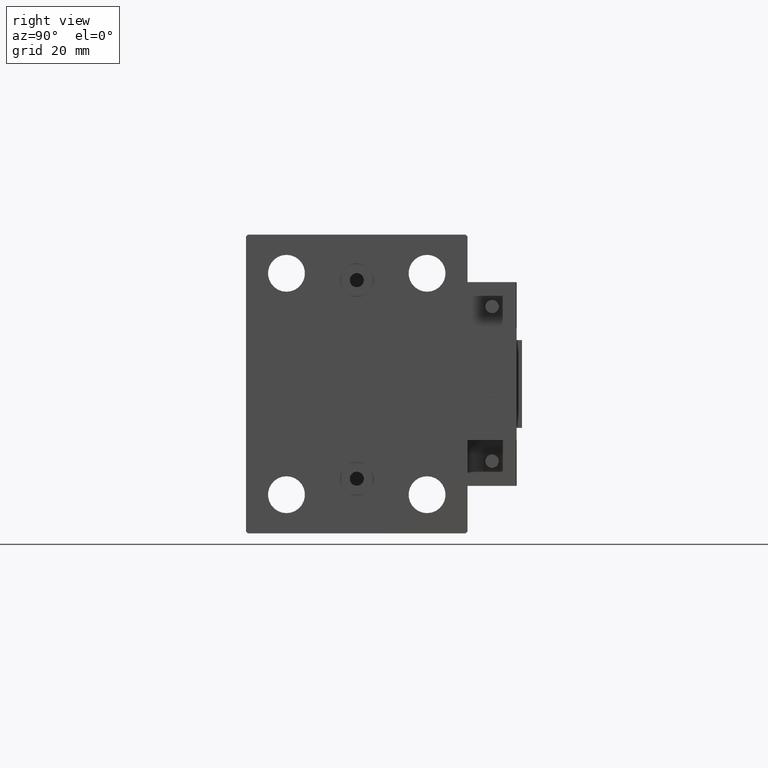
[diagram: clean part render]
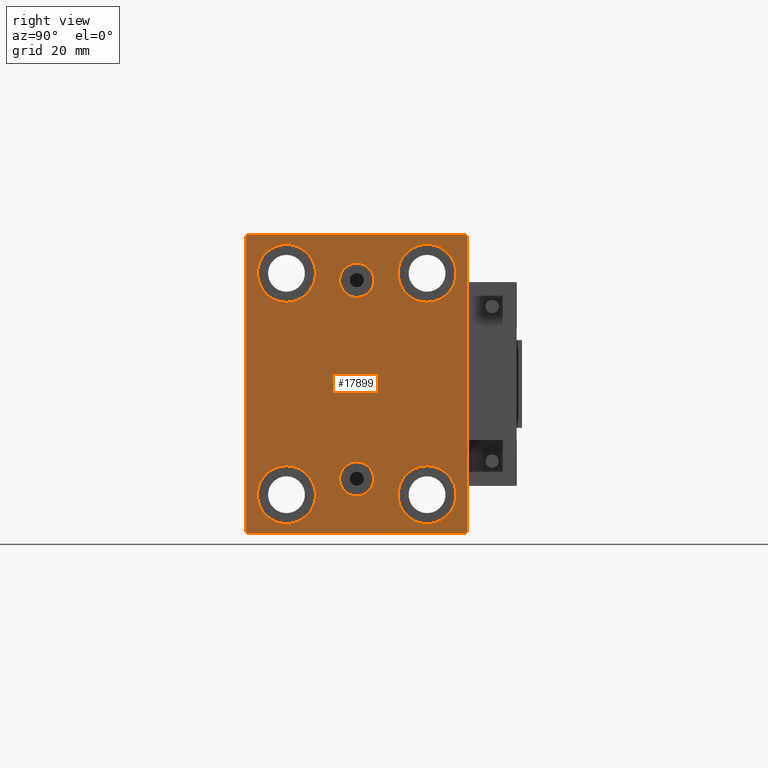
[diagram: same view with one face highlighted and labeled with its STEP entity id]
A machine part, right view. The second image highlights one B-rep face of the part: STEP entity #17899.
In plain terms, the highlighted planar face has unit normal (1, 0, 0).
Its self-contained STEP definition (entity closure, byte-faithful):
#135 = CARTESIAN_POINT ( 'NONE',  ( 73.00000000000000000, -3.571693674697836683E-15, 24.64000000000001123 ) ) ;
#678 = DIRECTION ( 'NONE',  ( 0.000000000000000000, 0.000000000000000000, 1.000000000000000000 ) ) ;
#831 = CIRCLE ( 'NONE', #43490, 8.250000000000000000 ) ;
#834 = VERTEX_POINT ( 'NONE', #27133 ) ;
#1111 = CARTESIAN_POINT ( 'NONE',  ( 73.00000000000000000, 36.75000000000001421, -36.75000000000001421 ) ) ;
#1369 = DIRECTION ( 'NONE',  ( 1.000000000000000000, 0.000000000000000000, 0.000000000000000000 ) ) ;
#1729 = CARTESIAN_POINT ( 'NONE',  ( 73.00000000000000000, -19.99999999999999645, 31.50000000000000000 ) ) ;
#2596 = EDGE_CURVE ( 'NONE', #834, #42101, #42070, .T. ) ;
#2986 = CIRCLE ( 'NONE', #9669, 4.859999999999999432 ) ;
#3086 = ORIENTED_EDGE ( 'NONE', *, *, #2596, .F. ) ;
#3845 = CARTESIAN_POINT ( 'NONE',  ( 73.00000000000000000, 31.00000000000001421, -42.50000000000000711 ) ) ;
#3886 = CARTESIAN_POINT ( 'NONE',  ( 73.00000000000000000, -31.50000000000000000, 41.99999999999999289 ) ) ;
#4144 = CARTESIAN_POINT ( 'NONE',  ( 73.00000000000000000, 36.75000000000000711, 36.75000000000000711 ) ) ;
#4768 = DIRECTION ( 'NONE',  ( 0.000000000000000000, -0.7071067811865474617, -0.7071067811865474617 ) ) ;
#4956 = CARTESIAN_POINT ( 'NONE',  ( 73.00000000000000000, -19.99999999999999645, 23.25000000000000355 ) ) ;
#5164 = EDGE_LOOP ( 'NONE', ( #6522, #43057 ) ) ;
#5286 = VERTEX_POINT ( 'NONE', #27978 ) ;
#5635 = FACE_BOUND ( 'NONE', #48841, .T. ) ;
#5663 = EDGE_LOOP ( 'NONE', ( #25432, #22390, #37390, #45957, #40288, #45699, #27450, #32620 ) ) ;
#5833 = CARTESIAN_POINT ( 'NONE',  ( 73.00000000000000000, 3.306546357697852550E-15, -26.99999999999998934 ) ) ;
#5899 = DIRECTION ( 'NONE',  ( 1.000000000000000000, 0.000000000000000000, 0.000000000000000000 ) ) ;
#5990 = DIRECTION ( 'NONE',  ( -1.000000000000000000, -0.000000000000000000, -0.000000000000000000 ) ) ;
#6213 = EDGE_CURVE ( 'NONE', #6668, #49898, #40571, .T. ) ;
#6246 = VERTEX_POINT ( 'NONE', #4956 ) ;
#6522 = ORIENTED_EDGE ( 'NONE', *, *, #41097, .T. ) ;
#6535 = VECTOR ( 'NONE', #44195, 1000.000000000000114 ) ;
#6605 = VERTEX_POINT ( 'NONE', #22642 ) ;
#6668 = VERTEX_POINT ( 'NONE', #15807 ) ;
#7250 = VERTEX_POINT ( 'NONE', #19540 ) ;
#8183 = DIRECTION ( 'NONE',  ( -0.000000000000000000, 0.7071067811865474617, 0.7071067811865474617 ) ) ;
#8256 = DIRECTION ( 'NONE',  ( 0.000000000000000000, 1.000000000000000000, 0.000000000000000000 ) ) ;
#8266 = VERTEX_POINT ( 'NONE', #35075 ) ;
#8324 = FACE_BOUND ( 'NONE', #5164, .T. ) ;
#8441 = VECTOR ( 'NONE', #12992, 1000.000000000000000 ) ;
#8457 = EDGE_LOOP ( 'NONE', ( #31598, #30058 ) ) ;
#8967 = EDGE_CURVE ( 'NONE', #9693, #6246, #13753, .T. ) ;
#8996 = VECTOR ( 'NONE', #4768, 1000.000000000000114 ) ;
#9568 = DIRECTION ( 'NONE',  ( -1.000000000000000000, -0.000000000000000000, -0.000000000000000000 ) ) ;
#9669 = AXIS2_PLACEMENT_3D ( 'NONE', #45592, #1369, #33312 ) ;
#9693 = VERTEX_POINT ( 'NONE', #23727 ) ;
#9702 = VERTEX_POINT ( 'NONE', #3845 ) ;
#10118 = CARTESIAN_POINT ( 'NONE',  ( 73.00000000000000000, 20.00000000000000355, 23.25000000000000355 ) ) ;
#10677 = AXIS2_PLACEMENT_3D ( 'NONE', #47646, #11542, #27252 ) ;
#10848 = AXIS2_PLACEMENT_3D ( 'NONE', #33018, #36694, #12848 ) ;
#10955 = CARTESIAN_POINT ( 'NONE',  ( 73.00000000000000000, -31.00000000000000000, -42.50000000000000711 ) ) ;
#11020 = CIRCLE ( 'NONE', #51086, 8.249999999999992895 ) ;
#11542 = DIRECTION ( 'NONE',  ( -1.000000000000000000, -0.000000000000000000, -0.000000000000000000 ) ) ;
#11782 = VERTEX_POINT ( 'NONE', #48738 ) ;
#11810 = CIRCLE ( 'NONE', #14316, 8.249999999999992895 ) ;
#11815 = EDGE_CURVE ( 'NONE', #42101, #834, #2986, .T. ) ;
#12101 = DIRECTION ( 'NONE',  ( 0.000000000000000000, 0.000000000000000000, 1.000000000000000000 ) ) ;
#12247 = FACE_BOUND ( 'NONE', #13197, .T. ) ;
#12305 = CARTESIAN_POINT ( 'NONE',  ( 73.00000000000000000, 31.00000000000000000, 42.50000000000000711 ) ) ;
#12434 = CARTESIAN_POINT ( 'NONE',  ( 73.00000000000000000, -31.50000000000000000, -42.50000000000000711 ) ) ;
#12848 = DIRECTION ( 'NONE',  ( 0.000000000000000000, 0.000000000000000000, 1.000000000000000000 ) ) ;
#12992 = DIRECTION ( 'NONE',  ( 0.000000000000000000, 0.000000000000000000, -1.000000000000000000 ) ) ;
#13197 = EDGE_LOOP ( 'NONE', ( #35023, #24511 ) ) ;
#13412 = EDGE_CURVE ( 'NONE', #35393, #7250, #21398, .T. ) ;
#13577 = DIRECTION ( 'NONE',  ( 0.000000000000000000, -1.632680918566406300E-16, 1.000000000000000000 ) ) ;
#13692 = DIRECTION ( 'NONE',  ( -1.000000000000000000, -0.000000000000000000, -0.000000000000000000 ) ) ;
#13753 = CIRCLE ( 'NONE', #47993, 8.249999999999992895 ) ;
#14254 = EDGE_CURVE ( 'NONE', #7250, #35393, #17244, .T. ) ;
#14316 = AXIS2_PLACEMENT_3D ( 'NONE', #39629, #43298, #12101 ) ;
#14800 = DIRECTION ( 'NONE',  ( -0.000000000000000000, 0.7071067811865474617, -0.7071067811865474617 ) ) ;
#14883 = VECTOR ( 'NONE', #8183, 1000.000000000000114 ) ;
#14885 = DIRECTION ( 'NONE',  ( 1.000000000000000000, 0.000000000000000000, -0.000000000000000000 ) ) ;
#15157 = VERTEX_POINT ( 'NONE', #39339 ) ;
#15739 = VECTOR ( 'NONE', #8256, 1000.000000000000000 ) ;
#15807 = CARTESIAN_POINT ( 'NONE',  ( 73.00000000000000000, 31.50000000000001421, -42.00000000000000711 ) ) ;
#16677 = CARTESIAN_POINT ( 'NONE',  ( 73.00000000000000000, 0.000000000000000000, 0.000000000000000000 ) ) ;
#17244 = CIRCLE ( 'NONE', #26450, 4.859999999999995879 ) ;
#17347 = EDGE_CURVE ( 'NONE', #5286, #6605, #20722, .T. ) ;
#17899 = ADVANCED_FACE ( 'NONE', ( #40027, #12247, #8324, #45934, #5635, #48362, #25782 ), #48622, .T. ) ;
#17900 = EDGE_CURVE ( 'NONE', #49898, #26889, #28223, .T. ) ;
#18116 = DIRECTION ( 'NONE',  ( 0.000000000000000000, 0.000000000000000000, 1.000000000000000000 ) ) ;
#19433 = EDGE_CURVE ( 'NONE', #26889, #11782, #34016, .T. ) ;
#19540 = CARTESIAN_POINT ( 'NONE',  ( 73.00000000000000000, 3.306546357697852550E-15, -31.85999999999998522 ) ) ;
#19854 = CARTESIAN_POINT ( 'NONE',  ( 73.00000000000000000, 3.306546357697852550E-15, -26.99999999999998934 ) ) ;
#20145 = EDGE_CURVE ( 'NONE', #11782, #21983, #40650, .T. ) ;
#20453 = EDGE_CURVE ( 'NONE', #15157, #22429, #51588, .T. ) ;
#20722 = CIRCLE ( 'NONE', #10677, 8.250000000000000000 ) ;
#21270 = DIRECTION ( 'NONE',  ( 1.000000000000000000, 0.000000000000000000, -0.000000000000000000 ) ) ;
#21369 = EDGE_CURVE ( 'NONE', #9702, #6668, #47957, .T. ) ;
#21398 = CIRCLE ( 'NONE', #28082, 4.859999999999995879 ) ;
#21900 = VECTOR ( 'NONE', #14800, 1000.000000000000114 ) ;
#21983 = VERTEX_POINT ( 'NONE', #3886 ) ;
#22197 = DIRECTION ( 'NONE',  ( 0.000000000000000000, 0.000000000000000000, 1.000000000000000000 ) ) ;
#22264 = EDGE_CURVE ( 'NONE', #22804, #9702, #40476, .T. ) ;
#22390 = ORIENTED_EDGE ( 'NONE', *, *, #20145, .T. ) ;
#22429 = VERTEX_POINT ( 'NONE', #51296 ) ;
#22642 = CARTESIAN_POINT ( 'NONE',  ( 73.00000000000000000, 19.99999999999999645, -39.74999999999999289 ) ) ;
#22804 = VERTEX_POINT ( 'NONE', #10955 ) ;
#23727 = CARTESIAN_POINT ( 'NONE',  ( 73.00000000000000000, -19.99999999999999645, 39.74999999999999289 ) ) ;
#24024 = DIRECTION ( 'NONE',  ( 0.000000000000000000, 0.000000000000000000, -1.000000000000000000 ) ) ;
#24511 = ORIENTED_EDGE ( 'NONE', *, *, #13412, .F. ) ;
#25291 = ORIENTED_EDGE ( 'NONE', *, *, #11815, .F. ) ;
#25432 = ORIENTED_EDGE ( 'NONE', *, *, #19433, .T. ) ;
#25497 = CARTESIAN_POINT ( 'NONE',  ( 73.00000000000000000, 31.50000000000000000, 42.00000000000000711 ) ) ;
#25782 = FACE_OUTER_BOUND ( 'NONE', #5663, .T. ) ;
#26056 = VERTEX_POINT ( 'NONE', #10118 ) ;
#26450 = AXIS2_PLACEMENT_3D ( 'NONE', #5833, #21270, #37277 ) ;
#26460 = DIRECTION ( 'NONE',  ( -1.000000000000000000, -0.000000000000000000, -0.000000000000000000 ) ) ;
#26889 = VERTEX_POINT ( 'NONE', #12305 ) ;
#27133 = CARTESIAN_POINT ( 'NONE',  ( 73.00000000000000000, -2.976515330312223011E-15, 34.36000000000000654 ) ) ;
#27239 = DIRECTION ( 'NONE',  ( 0.000000000000000000, 0.000000000000000000, 1.000000000000000000 ) ) ;
#27252 = DIRECTION ( 'NONE',  ( 0.000000000000000000, 0.000000000000000000, 1.000000000000000000 ) ) ;
#27262 = AXIS2_PLACEMENT_3D ( 'NONE', #34008, #38961, #50946 ) ;
#27450 = ORIENTED_EDGE ( 'NONE', *, *, #6213, .T. ) ;
#27978 = CARTESIAN_POINT ( 'NONE',  ( 73.00000000000000000, 19.99999999999999645, -23.24999999999999289 ) ) ;
#28082 = AXIS2_PLACEMENT_3D ( 'NONE', #19854, #14885, #46819 ) ;
#28143 = EDGE_CURVE ( 'NONE', #8266, #26056, #36471, .T. ) ;
#28223 = LINE ( 'NONE', #4144, #6535 ) ;
#28329 = CARTESIAN_POINT ( 'NONE',  ( 73.00000000000000000, -36.75000000000000000, 36.75000000000000000 ) ) ;
#29076 = AXIS2_PLACEMENT_3D ( 'NONE', #46603, #26460, #27239 ) ;
#29574 = CARTESIAN_POINT ( 'NONE',  ( 73.00000000000000000, -36.75000000000000711, -36.75000000000000711 ) ) ;
#30058 = ORIENTED_EDGE ( 'NONE', *, *, #8967, .T. ) ;
#31598 = ORIENTED_EDGE ( 'NONE', *, *, #48513, .T. ) ;
#31854 = ORIENTED_EDGE ( 'NONE', *, *, #47032, .T. ) ;
#32620 = ORIENTED_EDGE ( 'NONE', *, *, #17900, .T. ) ;
#33018 = CARTESIAN_POINT ( 'NONE',  ( 73.00000000000000000, -20.00000000000000355, -31.49999999999999289 ) ) ;
#33085 = DIRECTION ( 'NONE',  ( 0.000000000000000000, 0.000000000000000000, -1.000000000000000000 ) ) ;
#33312 = DIRECTION ( 'NONE',  ( 0.000000000000000000, 0.000000000000000000, -1.000000000000000000 ) ) ;
#33414 = EDGE_LOOP ( 'NONE', ( #25291, #3086 ) ) ;
#33618 = EDGE_LOOP ( 'NONE', ( #35492, #43417 ) ) ;
#34008 = CARTESIAN_POINT ( 'NONE',  ( 73.00000000000000000, 20.00000000000000355, 31.50000000000000000 ) ) ;
#34016 = LINE ( 'NONE', #46028, #47388 ) ;
#34782 = DIRECTION ( 'NONE',  ( 0.000000000000000000, -1.000000000000000000, -2.202823461557850341E-16 ) ) ;
#35023 = ORIENTED_EDGE ( 'NONE', *, *, #14254, .F. ) ;
#35075 = CARTESIAN_POINT ( 'NONE',  ( 73.00000000000000000, 20.00000000000000355, 39.74999999999999289 ) ) ;
#35393 = VERTEX_POINT ( 'NONE', #49166 ) ;
#35492 = ORIENTED_EDGE ( 'NONE', *, *, #40343, .T. ) ;
#36352 = VERTEX_POINT ( 'NONE', #50296 ) ;
#36471 = CIRCLE ( 'NONE', #27262, 8.249999999999992895 ) ;
#36694 = DIRECTION ( 'NONE',  ( -1.000000000000000000, -0.000000000000000000, -0.000000000000000000 ) ) ;
#36770 = CIRCLE ( 'NONE', #10848, 8.250000000000000000 ) ;
#37277 = DIRECTION ( 'NONE',  ( 0.000000000000000000, 0.000000000000000000, 1.000000000000000000 ) ) ;
#37390 = ORIENTED_EDGE ( 'NONE', *, *, #47784, .T. ) ;
#38961 = DIRECTION ( 'NONE',  ( -1.000000000000000000, -0.000000000000000000, -0.000000000000000000 ) ) ;
#39339 = CARTESIAN_POINT ( 'NONE',  ( 73.00000000000000000, -20.00000000000000355, -23.24999999999999289 ) ) ;
#39629 = CARTESIAN_POINT ( 'NONE',  ( 73.00000000000000000, 20.00000000000000355, 31.50000000000000000 ) ) ;
#39878 = AXIS2_PLACEMENT_3D ( 'NONE', #16677, #5899, #24024 ) ;
#39914 = CARTESIAN_POINT ( 'NONE',  ( 73.00000000000000000, -3.571693674697836683E-15, 29.50000000000001066 ) ) ;
#40027 = FACE_BOUND ( 'NONE', #33414, .T. ) ;
#40288 = ORIENTED_EDGE ( 'NONE', *, *, #22264, .T. ) ;
#40343 = EDGE_CURVE ( 'NONE', #22429, #15157, #36770, .T. ) ;
#40426 = DIRECTION ( 'NONE',  ( 1.000000000000000000, 0.000000000000000000, 0.000000000000000000 ) ) ;
#40476 = LINE ( 'NONE', #12434, #15739 ) ;
#40505 = CARTESIAN_POINT ( 'NONE',  ( 73.00000000000000000, -31.50000000000000000, 42.49999999999999289 ) ) ;
#40571 = LINE ( 'NONE', #48394, #48719 ) ;
#40650 = LINE ( 'NONE', #28329, #8996 ) ;
#40765 = LINE ( 'NONE', #40505, #8441 ) ;
#41097 = EDGE_CURVE ( 'NONE', #6605, #5286, #831, .T. ) ;
#42039 = ORIENTED_EDGE ( 'NONE', *, *, #28143, .T. ) ;
#42070 = CIRCLE ( 'NONE', #46228, 4.859999999999999432 ) ;
#42101 = VERTEX_POINT ( 'NONE', #135 ) ;
#43057 = ORIENTED_EDGE ( 'NONE', *, *, #17347, .T. ) ;
#43298 = DIRECTION ( 'NONE',  ( -1.000000000000000000, -0.000000000000000000, -0.000000000000000000 ) ) ;
#43417 = ORIENTED_EDGE ( 'NONE', *, *, #20453, .T. ) ;
#43490 = AXIS2_PLACEMENT_3D ( 'NONE', #50044, #13692, #18116 ) ;
#44195 = DIRECTION ( 'NONE',  ( -0.000000000000000000, -0.7071067811865474617, 0.7071067811865474617 ) ) ;
#45592 = CARTESIAN_POINT ( 'NONE',  ( 73.00000000000000000, -3.571693674697836683E-15, 29.50000000000001066 ) ) ;
#45699 = ORIENTED_EDGE ( 'NONE', *, *, #21369, .T. ) ;
#45934 = FACE_BOUND ( 'NONE', #8457, .T. ) ;
#45957 = ORIENTED_EDGE ( 'NONE', *, *, #49626, .T. ) ;
#46028 = CARTESIAN_POINT ( 'NONE',  ( 73.00000000000000000, 31.50000000000000000, 42.50000000000000711 ) ) ;
#46228 = AXIS2_PLACEMENT_3D ( 'NONE', #39914, #40426, #33085 ) ;
#46603 = CARTESIAN_POINT ( 'NONE',  ( 73.00000000000000000, -20.00000000000000355, -31.49999999999999289 ) ) ;
#46819 = DIRECTION ( 'NONE',  ( 0.000000000000000000, 0.000000000000000000, 1.000000000000000000 ) ) ;
#47032 = EDGE_CURVE ( 'NONE', #26056, #8266, #11810, .T. ) ;
#47388 = VECTOR ( 'NONE', #34782, 1000.000000000000000 ) ;
#47646 = CARTESIAN_POINT ( 'NONE',  ( 73.00000000000000000, 19.99999999999999645, -31.49999999999999289 ) ) ;
#47784 = EDGE_CURVE ( 'NONE', #21983, #36352, #40765, .T. ) ;
#47957 = LINE ( 'NONE', #1111, #14883 ) ;
#47993 = AXIS2_PLACEMENT_3D ( 'NONE', #1729, #9568, #678 ) ;
#48362 = FACE_BOUND ( 'NONE', #33618, .T. ) ;
#48394 = CARTESIAN_POINT ( 'NONE',  ( 73.00000000000000000, 31.50000000000001421, -42.50000000000000711 ) ) ;
#48513 = EDGE_CURVE ( 'NONE', #6246, #9693, #11020, .T. ) ;
#48622 = PLANE ( 'NONE',  #39878 ) ;
#48719 = VECTOR ( 'NONE', #13577, 1000.000000000000000 ) ;
#48738 = CARTESIAN_POINT ( 'NONE',  ( 73.00000000000000000, -31.00000000000000000, 42.49999999999999289 ) ) ;
#48841 = EDGE_LOOP ( 'NONE', ( #31854, #42039 ) ) ;
#49166 = CARTESIAN_POINT ( 'NONE',  ( 73.00000000000000000, 3.901724702083465828E-15, -22.13999999999999346 ) ) ;
#49626 = EDGE_CURVE ( 'NONE', #36352, #22804, #50898, .T. ) ;
#49898 = VERTEX_POINT ( 'NONE', #25497 ) ;
#50044 = CARTESIAN_POINT ( 'NONE',  ( 73.00000000000000000, 19.99999999999999645, -31.49999999999999289 ) ) ;
#50296 = CARTESIAN_POINT ( 'NONE',  ( 73.00000000000000000, -31.50000000000000000, -42.00000000000000711 ) ) ;
#50444 = CARTESIAN_POINT ( 'NONE',  ( 73.00000000000000000, -19.99999999999999645, 31.50000000000000000 ) ) ;
#50898 = LINE ( 'NONE', #29574, #21900 ) ;
#50946 = DIRECTION ( 'NONE',  ( 0.000000000000000000, 0.000000000000000000, 1.000000000000000000 ) ) ;
#51086 = AXIS2_PLACEMENT_3D ( 'NONE', #50444, #5990, #22197 ) ;
#51296 = CARTESIAN_POINT ( 'NONE',  ( 73.00000000000000000, -20.00000000000000355, -39.74999999999999289 ) ) ;
#51588 = CIRCLE ( 'NONE', #29076, 8.250000000000000000 ) ;